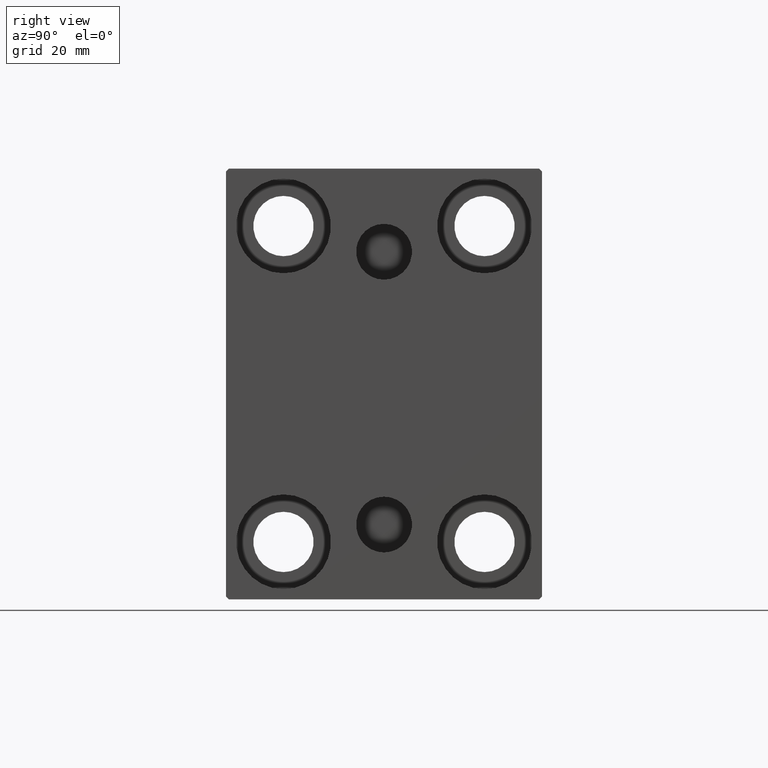
[diagram: clean part render]
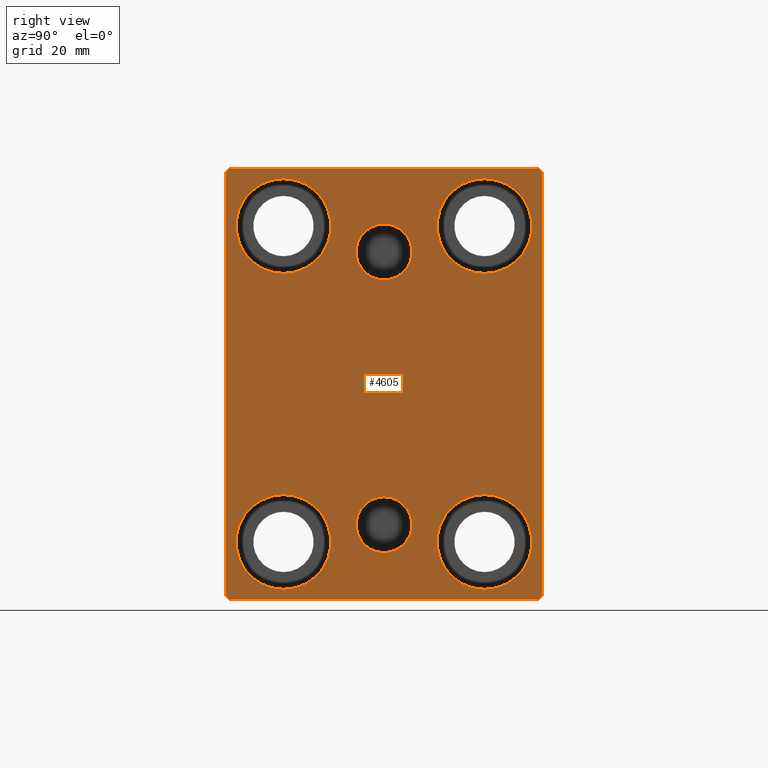
[diagram: same view with one face highlighted and labeled with its STEP entity id]
A machine part, right view. The second image highlights one B-rep face of the part: STEP entity #4605.
In plain terms, the highlighted planar face has unit normal (1, 0, 0).
Its self-contained STEP definition (entity closure, byte-faithful):
#308 = ORIENTED_EDGE ( 'NONE', *, *, #3210, .T. ) ;
#352 = CIRCLE ( 'NONE', #26419, 8.249999999999992895 ) ;
#370 = CARTESIAN_POINT ( 'NONE',  ( 75.00000000000000000, -2.976515330312223406E-15, 27.86000000000000654 ) ) ;
#1009 = EDGE_CURVE ( 'NONE', #25775, #19675, #30461, .T. ) ;
#1048 = DIRECTION ( 'NONE',  ( -0.000000000000000000, 0.7071067811865474617, 0.7071067811865474617 ) ) ;
#1345 = ORIENTED_EDGE ( 'NONE', *, *, #16443, .T. ) ;
#1419 = FACE_BOUND ( 'NONE', #11420, .T. ) ;
#1961 = AXIS2_PLACEMENT_3D ( 'NONE', #36789, #16080, #16525 ) ;
#2534 = LINE ( 'NONE', #15542, #13393 ) ;
#3004 = EDGE_CURVE ( 'NONE', #15341, #17072, #28534, .T. ) ;
#3116 = CIRCLE ( 'NONE', #34064, 8.250000000000000000 ) ;
#3210 = EDGE_CURVE ( 'NONE', #41405, #15341, #34650, .T. ) ;
#3357 = ORIENTED_EDGE ( 'NONE', *, *, #40251, .F. ) ;
#3497 = CARTESIAN_POINT ( 'NONE',  ( 75.00000000000000000, 0.000000000000000000, 0.000000000000000000 ) ) ;
#3600 = EDGE_CURVE ( 'NONE', #31999, #31915, #26304, .T. ) ;
#3742 = VECTOR ( 'NONE', #29179, 1000.000000000000000 ) ;
#3940 = EDGE_CURVE ( 'NONE', #24571, #15400, #8686, .T. ) ;
#3977 = DIRECTION ( 'NONE',  ( 0.000000000000000000, -0.7071067811865474617, -0.7071067811865474617 ) ) ;
#4040 = CARTESIAN_POINT ( 'NONE',  ( 75.00000000000000000, -17.50000000000000355, -27.50000000000000355 ) ) ;
#4605 = ADVANCED_FACE ( 'NONE', ( #31414, #35146, #11355, #27899, #1419, #16943, #4960 ), #30607, .T. ) ;
#4627 = DIRECTION ( 'NONE',  ( -1.000000000000000000, -0.000000000000000000, -0.000000000000000000 ) ) ;
#4960 = FACE_OUTER_BOUND ( 'NONE', #25081, .T. ) ;
#5437 = EDGE_CURVE ( 'NONE', #29715, #32471, #352, .T. ) ;
#5447 = DIRECTION ( 'NONE',  ( 0.000000000000000000, 0.000000000000000000, 1.000000000000000000 ) ) ;
#5899 = CARTESIAN_POINT ( 'NONE',  ( 75.00000000000000000, -27.50000000000000355, 37.50000000000000000 ) ) ;
#5949 = CARTESIAN_POINT ( 'NONE',  ( 75.00000000000000000, -3.571693674697836683E-15, 18.14000000000000767 ) ) ;
#6018 = DIRECTION ( 'NONE',  ( 0.000000000000000000, -9.251858538542970348E-17, 1.000000000000000000 ) ) ;
#6333 = ORIENTED_EDGE ( 'NONE', *, *, #3004, .T. ) ;
#6393 = DIRECTION ( 'NONE',  ( -1.000000000000000000, -0.000000000000000000, -0.000000000000000000 ) ) ;
#6446 = EDGE_CURVE ( 'NONE', #17072, #15567, #25067, .T. ) ;
#6869 = EDGE_CURVE ( 'NONE', #33566, #21024, #3116, .T. ) ;
#7121 = DIRECTION ( 'NONE',  ( -0.000000000000000000, 0.7071067811865474617, -0.7071067811865474617 ) ) ;
#7159 = AXIS2_PLACEMENT_3D ( 'NONE', #12624, #15492, #12407 ) ;
#7513 = CARTESIAN_POINT ( 'NONE',  ( 75.00000000000000000, -32.25000000000000711, 32.25000000000000711 ) ) ;
#7916 = EDGE_LOOP ( 'NONE', ( #9047, #12152 ) ) ;
#7983 = ORIENTED_EDGE ( 'NONE', *, *, #8623, .T. ) ;
#8476 = CARTESIAN_POINT ( 'NONE',  ( 75.00000000000000000, -27.50000000000000355, -37.50000000000000000 ) ) ;
#8576 = DIRECTION ( 'NONE',  ( 0.000000000000000000, 0.000000000000000000, 1.000000000000000000 ) ) ;
#8623 = EDGE_CURVE ( 'NONE', #36258, #19064, #20005, .T. ) ;
#8639 = VECTOR ( 'NONE', #3977, 1000.000000000000114 ) ;
#8686 = CIRCLE ( 'NONE', #31213, 4.859999999999999432 ) ;
#8739 = VECTOR ( 'NONE', #36525, 1000.000000000000000 ) ;
#9023 = CIRCLE ( 'NONE', #1961, 4.859999999999999432 ) ;
#9047 = ORIENTED_EDGE ( 'NONE', *, *, #15761, .T. ) ;
#9127 = CARTESIAN_POINT ( 'NONE',  ( 75.00000000000000000, 27.00000000000000355, -37.50000000000000000 ) ) ;
#10011 = CARTESIAN_POINT ( 'NONE',  ( 75.00000000000000000, -3.571693674697836683E-15, 23.00000000000000711 ) ) ;
#10440 = DIRECTION ( 'NONE',  ( 0.000000000000000000, 0.000000000000000000, 1.000000000000000000 ) ) ;
#10798 = VECTOR ( 'NONE', #7121, 1000.000000000000114 ) ;
#10802 = VERTEX_POINT ( 'NONE', #42459 ) ;
#11355 = FACE_BOUND ( 'NONE', #19350, .T. ) ;
#11420 = EDGE_LOOP ( 'NONE', ( #16105, #36285 ) ) ;
#11635 = AXIS2_PLACEMENT_3D ( 'NONE', #3497, #38450, #41753 ) ;
#12152 = ORIENTED_EDGE ( 'NONE', *, *, #3600, .T. ) ;
#12399 = CARTESIAN_POINT ( 'NONE',  ( 75.00000000000000000, 17.50000000000000355, 35.74999999999999289 ) ) ;
#12407 = DIRECTION ( 'NONE',  ( 0.000000000000000000, 0.000000000000000000, 1.000000000000000000 ) ) ;
#12475 = AXIS2_PLACEMENT_3D ( 'NONE', #32152, #18915, #8576 ) ;
#12624 = CARTESIAN_POINT ( 'NONE',  ( 75.00000000000000000, 17.49999999999999645, -27.50000000000000355 ) ) ;
#12703 = CARTESIAN_POINT ( 'NONE',  ( 75.00000000000000000, -17.49999999999999645, 27.49999999999999645 ) ) ;
#13393 = VECTOR ( 'NONE', #18848, 1000.000000000000000 ) ;
#14018 = ORIENTED_EDGE ( 'NONE', *, *, #41796, .T. ) ;
#14332 = LINE ( 'NONE', #7513, #8639 ) ;
#15002 = CARTESIAN_POINT ( 'NONE',  ( 75.00000000000000000, -27.50000000000000355, -37.00000000000000000 ) ) ;
#15341 = VERTEX_POINT ( 'NONE', #27816 ) ;
#15379 = DIRECTION ( 'NONE',  ( -1.000000000000000000, -0.000000000000000000, -0.000000000000000000 ) ) ;
#15400 = VERTEX_POINT ( 'NONE', #42969 ) ;
#15492 = DIRECTION ( 'NONE',  ( -1.000000000000000000, -0.000000000000000000, -0.000000000000000000 ) ) ;
#15542 = CARTESIAN_POINT ( 'NONE',  ( 75.00000000000000000, 27.49999999999999645, 37.50000000000000711 ) ) ;
#15567 = VERTEX_POINT ( 'NONE', #33510 ) ;
#15761 = EDGE_CURVE ( 'NONE', #31915, #31999, #31483, .T. ) ;
#15794 = CARTESIAN_POINT ( 'NONE',  ( 75.00000000000000000, 17.50000000000000355, 27.49999999999999645 ) ) ;
#15931 = LINE ( 'NONE', #22112, #28268 ) ;
#16080 = DIRECTION ( 'NONE',  ( 1.000000000000000000, 0.000000000000000000, -0.000000000000000000 ) ) ;
#16105 = ORIENTED_EDGE ( 'NONE', *, *, #5437, .T. ) ;
#16181 = DIRECTION ( 'NONE',  ( 1.000000000000000000, 0.000000000000000000, 0.000000000000000000 ) ) ;
#16366 = CARTESIAN_POINT ( 'NONE',  ( 75.00000000000000000, 17.50000000000000355, 19.25000000000000000 ) ) ;
#16443 = EDGE_CURVE ( 'NONE', #10802, #41295, #35667, .T. ) ;
#16525 = DIRECTION ( 'NONE',  ( 0.000000000000000000, 0.000000000000000000, 1.000000000000000000 ) ) ;
#16881 = EDGE_LOOP ( 'NONE', ( #29277, #14018 ) ) ;
#16943 = FACE_BOUND ( 'NONE', #16881, .T. ) ;
#17047 = CARTESIAN_POINT ( 'NONE',  ( 75.00000000000000000, 3.000384657911015074E-15, -24.49999999999999289 ) ) ;
#17072 = VERTEX_POINT ( 'NONE', #9127 ) ;
#17989 = CARTESIAN_POINT ( 'NONE',  ( 75.00000000000000000, -17.49999999999999645, 19.25000000000000000 ) ) ;
#18194 = ORIENTED_EDGE ( 'NONE', *, *, #6446, .T. ) ;
#18199 = CARTESIAN_POINT ( 'NONE',  ( 75.00000000000000000, 17.49999999999999645, -19.25000000000000355 ) ) ;
#18481 = EDGE_CURVE ( 'NONE', #15400, #24571, #9023, .T. ) ;
#18848 = DIRECTION ( 'NONE',  ( 0.000000000000000000, -1.000000000000000000, -1.261617073437677999E-16 ) ) ;
#18884 = CARTESIAN_POINT ( 'NONE',  ( 75.00000000000000000, 32.25000000000000000, -32.25000000000000000 ) ) ;
#18915 = DIRECTION ( 'NONE',  ( -1.000000000000000000, -0.000000000000000000, -0.000000000000000000 ) ) ;
#19064 = VERTEX_POINT ( 'NONE', #18199 ) ;
#19350 = EDGE_LOOP ( 'NONE', ( #7983, #29093 ) ) ;
#19675 = VERTEX_POINT ( 'NONE', #370 ) ;
#20005 = CIRCLE ( 'NONE', #37613, 8.250000000000000000 ) ;
#20485 = CARTESIAN_POINT ( 'NONE',  ( 75.00000000000000000, -17.50000000000000355, -19.25000000000000355 ) ) ;
#20752 = CIRCLE ( 'NONE', #43275, 4.859999999999999432 ) ;
#21024 = VERTEX_POINT ( 'NONE', #20485 ) ;
#21373 = DIRECTION ( 'NONE',  ( 0.000000000000000000, 0.000000000000000000, 1.000000000000000000 ) ) ;
#21901 = CIRCLE ( 'NONE', #7159, 8.250000000000000000 ) ;
#22112 = CARTESIAN_POINT ( 'NONE',  ( 75.00000000000000000, 27.50000000000000355, -37.50000000000000000 ) ) ;
#22566 = CARTESIAN_POINT ( 'NONE',  ( 75.00000000000000000, -3.571693674697836683E-15, 23.00000000000000711 ) ) ;
#22702 = DIRECTION ( 'NONE',  ( 0.000000000000000000, 0.000000000000000000, 1.000000000000000000 ) ) ;
#24235 = ORIENTED_EDGE ( 'NONE', *, *, #18481, .F. ) ;
#24571 = VERTEX_POINT ( 'NONE', #42558 ) ;
#25067 = LINE ( 'NONE', #18884, #38960 ) ;
#25081 = EDGE_LOOP ( 'NONE', ( #38926, #43169, #27169, #308, #6333, #18194, #40590, #1345 ) ) ;
#25299 = CARTESIAN_POINT ( 'NONE',  ( 75.00000000000000000, -17.50000000000000355, -27.50000000000000355 ) ) ;
#25616 = AXIS2_PLACEMENT_3D ( 'NONE', #25299, #15379, #28829 ) ;
#25775 = VERTEX_POINT ( 'NONE', #5949 ) ;
#25868 = DIRECTION ( 'NONE',  ( 0.000000000000000000, 0.000000000000000000, -1.000000000000000000 ) ) ;
#25971 = CARTESIAN_POINT ( 'NONE',  ( 75.00000000000000000, 32.25000000000019185, 32.24999999999975131 ) ) ;
#26004 = CARTESIAN_POINT ( 'NONE',  ( 75.00000000000000000, 17.49999999999999645, -27.50000000000000355 ) ) ;
#26152 = DIRECTION ( 'NONE',  ( -1.000000000000000000, -0.000000000000000000, -0.000000000000000000 ) ) ;
#26304 = CIRCLE ( 'NONE', #29806, 8.249999999999992895 ) ;
#26419 = AXIS2_PLACEMENT_3D ( 'NONE', #35457, #4627, #21373 ) ;
#26969 = DIRECTION ( 'NONE',  ( 1.000000000000000000, 0.000000000000000000, -0.000000000000000000 ) ) ;
#27169 = ORIENTED_EDGE ( 'NONE', *, *, #41934, .T. ) ;
#27368 = CARTESIAN_POINT ( 'NONE',  ( 75.00000000000000000, 27.00000000000001066, 37.50000000000000711 ) ) ;
#27678 = CARTESIAN_POINT ( 'NONE',  ( 75.00000000000000000, -27.00000000000001776, 37.50000000000000000 ) ) ;
#27816 = CARTESIAN_POINT ( 'NONE',  ( 75.00000000000000000, -27.00000000000000355, -37.50000000000000000 ) ) ;
#27899 = FACE_BOUND ( 'NONE', #7916, .T. ) ;
#28095 = ORIENTED_EDGE ( 'NONE', *, *, #3940, .F. ) ;
#28268 = VECTOR ( 'NONE', #6018, 1000.000000000000000 ) ;
#28380 = DIRECTION ( 'NONE',  ( -1.000000000000000000, -0.000000000000000000, -0.000000000000000000 ) ) ;
#28534 = LINE ( 'NONE', #8476, #3742 ) ;
#28829 = DIRECTION ( 'NONE',  ( 0.000000000000000000, 0.000000000000000000, 1.000000000000000000 ) ) ;
#29036 = EDGE_LOOP ( 'NONE', ( #24235, #28095 ) ) ;
#29093 = ORIENTED_EDGE ( 'NONE', *, *, #33457, .T. ) ;
#29179 = DIRECTION ( 'NONE',  ( 0.000000000000000000, 1.000000000000000000, 0.000000000000000000 ) ) ;
#29218 = EDGE_CURVE ( 'NONE', #41295, #38776, #2534, .T. ) ;
#29277 = ORIENTED_EDGE ( 'NONE', *, *, #6869, .T. ) ;
#29715 = VERTEX_POINT ( 'NONE', #16366 ) ;
#29806 = AXIS2_PLACEMENT_3D ( 'NONE', #12703, #26152, #36057 ) ;
#30461 = CIRCLE ( 'NONE', #38180, 4.859999999999999432 ) ;
#30607 = PLANE ( 'NONE',  #11635 ) ;
#30936 = DIRECTION ( 'NONE',  ( 0.000000000000000000, 0.000000000000000000, 1.000000000000000000 ) ) ;
#31213 = AXIS2_PLACEMENT_3D ( 'NONE', #17047, #26969, #10440 ) ;
#31414 = FACE_BOUND ( 'NONE', #31696, .T. ) ;
#31483 = CIRCLE ( 'NONE', #12475, 8.249999999999992895 ) ;
#31696 = EDGE_LOOP ( 'NONE', ( #34212, #3357 ) ) ;
#31915 = VERTEX_POINT ( 'NONE', #17989 ) ;
#31999 = VERTEX_POINT ( 'NONE', #35811 ) ;
#32152 = CARTESIAN_POINT ( 'NONE',  ( 75.00000000000000000, -17.49999999999999645, 27.49999999999999645 ) ) ;
#32291 = CARTESIAN_POINT ( 'NONE',  ( 75.00000000000000000, -27.50000000000000355, 37.00000000000001421 ) ) ;
#32376 = DIRECTION ( 'NONE',  ( -0.000000000000000000, -0.7071067811865426878, 0.7071067811865524577 ) ) ;
#32471 = VERTEX_POINT ( 'NONE', #12399 ) ;
#32874 = VECTOR ( 'NONE', #32376, 1000.000000000000000 ) ;
#33308 = AXIS2_PLACEMENT_3D ( 'NONE', #15794, #28380, #5447 ) ;
#33457 = EDGE_CURVE ( 'NONE', #19064, #36258, #21901, .T. ) ;
#33459 = EDGE_CURVE ( 'NONE', #15567, #10802, #15931, .T. ) ;
#33510 = CARTESIAN_POINT ( 'NONE',  ( 75.00000000000000000, 27.50000000000000355, -37.00000000000000000 ) ) ;
#33566 = VERTEX_POINT ( 'NONE', #43460 ) ;
#34064 = AXIS2_PLACEMENT_3D ( 'NONE', #4040, #37100, #30936 ) ;
#34089 = CIRCLE ( 'NONE', #25616, 8.250000000000000000 ) ;
#34212 = ORIENTED_EDGE ( 'NONE', *, *, #1009, .F. ) ;
#34650 = LINE ( 'NONE', #37301, #10798 ) ;
#35146 = FACE_BOUND ( 'NONE', #29036, .T. ) ;
#35457 = CARTESIAN_POINT ( 'NONE',  ( 75.00000000000000000, 17.50000000000000355, 27.49999999999999645 ) ) ;
#35667 = LINE ( 'NONE', #25971, #32874 ) ;
#35811 = CARTESIAN_POINT ( 'NONE',  ( 75.00000000000000000, -17.49999999999999645, 35.74999999999999289 ) ) ;
#36057 = DIRECTION ( 'NONE',  ( 0.000000000000000000, 0.000000000000000000, 1.000000000000000000 ) ) ;
#36258 = VERTEX_POINT ( 'NONE', #39864 ) ;
#36285 = ORIENTED_EDGE ( 'NONE', *, *, #38530, .T. ) ;
#36525 = DIRECTION ( 'NONE',  ( 0.000000000000000000, 0.000000000000000000, -1.000000000000000000 ) ) ;
#36671 = DIRECTION ( 'NONE',  ( 0.000000000000000000, 0.000000000000000000, -1.000000000000000000 ) ) ;
#36789 = CARTESIAN_POINT ( 'NONE',  ( 75.00000000000000000, 3.000384657911015074E-15, -24.49999999999999289 ) ) ;
#37100 = DIRECTION ( 'NONE',  ( -1.000000000000000000, -0.000000000000000000, -0.000000000000000000 ) ) ;
#37170 = EDGE_CURVE ( 'NONE', #38776, #43068, #14332, .T. ) ;
#37301 = CARTESIAN_POINT ( 'NONE',  ( 75.00000000000000000, -32.25000000000000000, -32.25000000000000000 ) ) ;
#37613 = AXIS2_PLACEMENT_3D ( 'NONE', #26004, #6393, #22702 ) ;
#38180 = AXIS2_PLACEMENT_3D ( 'NONE', #22566, #39753, #25868 ) ;
#38227 = CIRCLE ( 'NONE', #33308, 8.249999999999992895 ) ;
#38450 = DIRECTION ( 'NONE',  ( 1.000000000000000000, 0.000000000000000000, 0.000000000000000000 ) ) ;
#38530 = EDGE_CURVE ( 'NONE', #32471, #29715, #38227, .T. ) ;
#38776 = VERTEX_POINT ( 'NONE', #27678 ) ;
#38926 = ORIENTED_EDGE ( 'NONE', *, *, #29218, .T. ) ;
#38960 = VECTOR ( 'NONE', #1048, 1000.000000000000114 ) ;
#39753 = DIRECTION ( 'NONE',  ( 1.000000000000000000, 0.000000000000000000, 0.000000000000000000 ) ) ;
#39864 = CARTESIAN_POINT ( 'NONE',  ( 75.00000000000000000, 17.49999999999999645, -35.75000000000000711 ) ) ;
#40251 = EDGE_CURVE ( 'NONE', #19675, #25775, #20752, .T. ) ;
#40590 = ORIENTED_EDGE ( 'NONE', *, *, #33459, .T. ) ;
#41295 = VERTEX_POINT ( 'NONE', #27368 ) ;
#41405 = VERTEX_POINT ( 'NONE', #15002 ) ;
#41753 = DIRECTION ( 'NONE',  ( 0.000000000000000000, 0.000000000000000000, -1.000000000000000000 ) ) ;
#41796 = EDGE_CURVE ( 'NONE', #21024, #33566, #34089, .T. ) ;
#41934 = EDGE_CURVE ( 'NONE', #43068, #41405, #43126, .T. ) ;
#42459 = CARTESIAN_POINT ( 'NONE',  ( 75.00000000000000000, 27.49999999999999645, 37.00000000000001421 ) ) ;
#42558 = CARTESIAN_POINT ( 'NONE',  ( 75.00000000000000000, 3.595563002296627957E-15, -19.63999999999999346 ) ) ;
#42969 = CARTESIAN_POINT ( 'NONE',  ( 75.00000000000000000, 3.000384657911015074E-15, -29.35999999999999233 ) ) ;
#43068 = VERTEX_POINT ( 'NONE', #32291 ) ;
#43126 = LINE ( 'NONE', #5899, #8739 ) ;
#43169 = ORIENTED_EDGE ( 'NONE', *, *, #37170, .T. ) ;
#43275 = AXIS2_PLACEMENT_3D ( 'NONE', #10011, #16181, #36671 ) ;
#43460 = CARTESIAN_POINT ( 'NONE',  ( 75.00000000000000000, -17.50000000000000355, -35.75000000000000711 ) ) ;